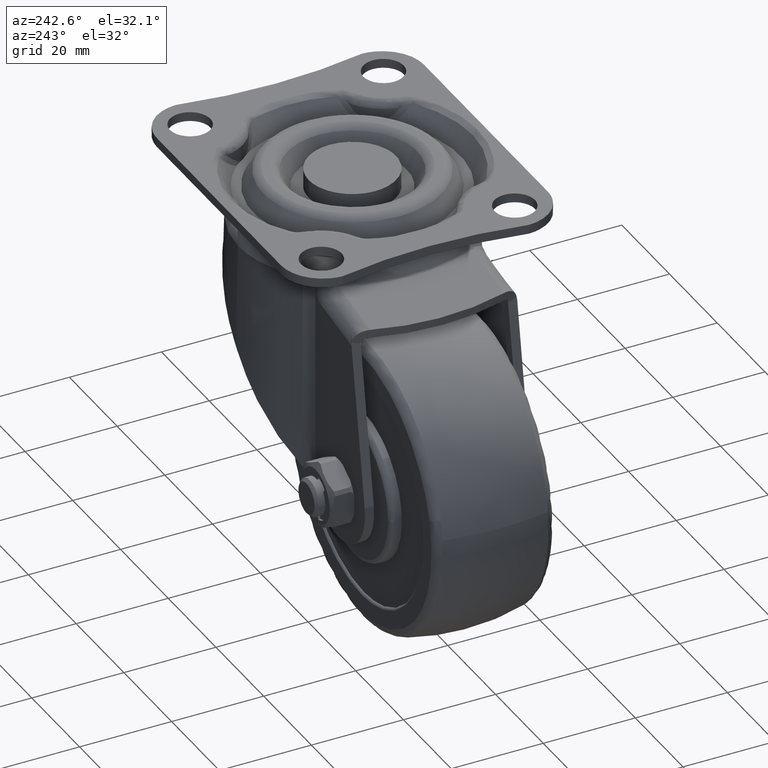
[diagram: clean part render]
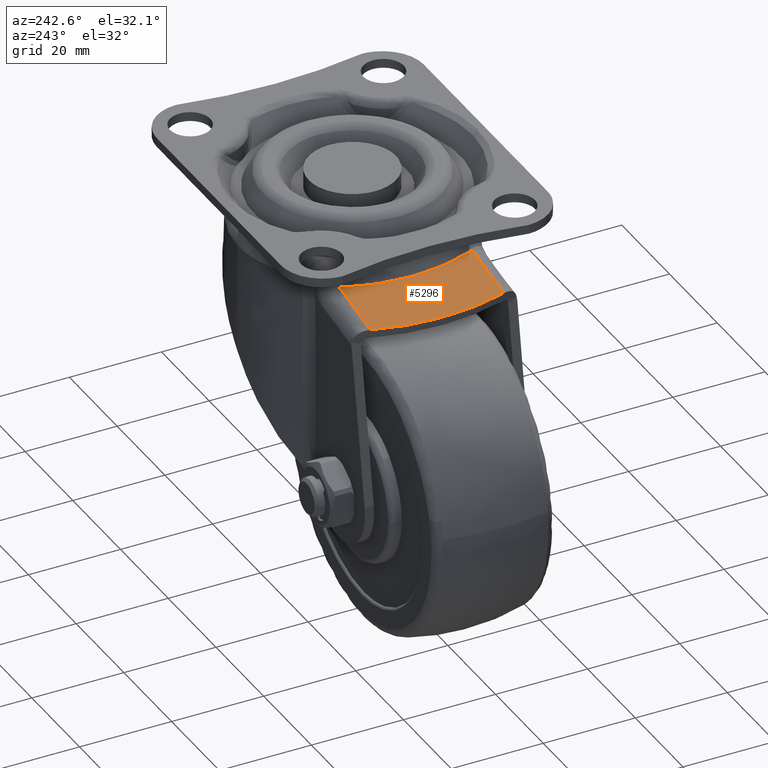
[diagram: same view with one face highlighted and labeled with its STEP entity id]
A machine part, auxiliary view. The second image highlights one B-rep face of the part: STEP entity #5296.
In plain terms, the highlighted face is a freeform B-spline surface patch.
Its self-contained STEP definition (entity closure, byte-faithful):
#3289=CARTESIAN_POINT('',(-22.292062245486200,14.499999078087519,-11.172663872593700));
#3290=VERTEX_POINT('',#3289);
#3355=CARTESIAN_POINT('',(-35.608757347840601,14.499999291777261,-13.520757330045740));
#3356=VERTEX_POINT('',#3355);
#3382=CARTESIAN_POINT('',(-22.292062245486200,14.499999078087519,-11.172663872593700));
#3383=CARTESIAN_POINT('',(-24.589946974007479,14.499999125384980,-11.577843115488990));
#3384=CARTESIAN_POINT('',(-26.887831705435151,14.499999165962830,-11.983022341901220));
#3385=CARTESIAN_POINT('',(-29.185716438736350,14.499999201974379,-12.388201557688239));
#3386=CARTESIAN_POINT('',(-31.326730073625800,14.499999235527509,-12.765720156859910));
#3387=CARTESIAN_POINT('',(-33.467743710160292,14.499999265087920,-13.143238746702060));
#3388=CARTESIAN_POINT('',(-35.608757347840651,14.499999291777280,-13.520757330045720));
#3389=B_SPLINE_CURVE_WITH_KNOTS('',3,(#3382,#3383,#3384,#3385,#3386,#3387,#3388),.UNSPECIFIED.,.F.,.U.,(4,3,4),(0.0,0.007000000000000,0.013522126731177),.UNSPECIFIED.);
#3390=EDGE_CURVE('',#3290,#3356,#3389,.T.);
#3601=CARTESIAN_POINT('',(-22.292062245486250,-14.499999078087519,-11.172663872593700));
#3602=VERTEX_POINT('',#3601);
#3694=CARTESIAN_POINT('',(-35.608757347840601,-14.499999291777261,-13.520757330045720));
#3695=VERTEX_POINT('',#3694);
#3696=CARTESIAN_POINT('',(-35.608757347840651,-14.499999291777280,-13.520757330045740));
#3697=CARTESIAN_POINT('',(-33.310872611544063,-14.499999263132400,-13.115578131246430));
#3698=CARTESIAN_POINT('',(-31.012987876563749,-14.499999231187459,-12.710398924982179));
#3699=CARTESIAN_POINT('',(-28.715103143528200,-14.499999194533601,-12.305219707688620));
#3700=CARTESIAN_POINT('',(-26.574089508891269,-14.499999160382011,-11.927701107114149));
#3701=CARTESIAN_POINT('',(-24.433075875932079,-14.499999122156099,-11.550182497024780));
#3702=CARTESIAN_POINT('',(-22.292062245486250,-14.499999078087519,-11.172663872593700));
#3703=B_SPLINE_CURVE_WITH_KNOTS('',3,(#3696,#3697,#3698,#3699,#3700,#3701,#3702),.UNSPECIFIED.,.F.,.U.,(4,3,4),(4.934061E-017,0.007000000000000,0.013522126731161),.UNSPECIFIED.);
#3704=EDGE_CURVE('',#3695,#3602,#3703,.T.);
#3894=CARTESIAN_POINT('',(-22.292062245486221,-14.499999078087511,-11.172663872593700));
#3895=CARTESIAN_POINT('',(-22.713654037118779,-13.338696067851590,-11.247002221498160));
#3896=CARTESIAN_POINT('',(-23.082084395855649,-12.160232084907070,-11.311966733878460));
#3897=CARTESIAN_POINT('',(-23.477604627746761,-10.666651097056700,-11.381707944650969));
#3898=CARTESIAN_POINT('',(-23.553449477489512,-10.366885773481970,-11.395081499895699));
#3899=CARTESIAN_POINT('',(-23.698273761653891,-9.766873654737958,-11.420618046907199));
#3900=CARTESIAN_POINT('',(-23.767307031377399,-9.466429735575137,-11.432790531334071));
#3901=CARTESIAN_POINT('',(-23.964380548068970,-8.563798695407739,-11.467540070637600));
#3902=CARTESIAN_POINT('',(-24.082400926083441,-7.960313124133126,-11.488350344182040));
#3903=CARTESIAN_POINT('',(-24.397015989338531,-6.144744690629926,-11.543825726178680));
#3904=CARTESIAN_POINT('',(-24.554257711172529,-4.927562174279132,-11.571551813397940));
#3905=CARTESIAN_POINT('',(-24.764787540425338,-2.479726047331289,-11.608674075562851));
#3906=CARTESIAN_POINT('',(-24.818076692175168,-1.249072572066579,-11.618070434654580));
#3907=CARTESIAN_POINT('',(-24.818737714460330,1.225959939485007,-11.618186991262091));
#3908=CARTESIAN_POINT('',(-24.766098551286682,2.457870676078306,-11.608905243228049));
#3909=CARTESIAN_POINT('',(-24.556313581544391,4.910165726171117,-11.571914320502060));
#3910=CARTESIAN_POINT('',(-24.399169355035362,6.130628631102218,-11.544205424416759));
#3911=CARTESIAN_POINT('',(-24.136420614466459,7.648992282920834,-11.497875516998750));
#3912=CARTESIAN_POINT('',(-24.080547335814479,7.952303436656977,-11.488023504707829));
#3913=CARTESIAN_POINT('',(-23.962097330245701,8.558196456346938,-11.467137475900071));
#3914=CARTESIAN_POINT('',(-23.899495678488819,8.860891167700109,-11.456099064441069));
#3915=CARTESIAN_POINT('',(-23.701707713929181,9.767067929059746,-11.421223548117361));
#3916=CARTESIAN_POINT('',(-23.556634375721220,10.368230485160540,-11.395643085931640));
#3917=CARTESIAN_POINT('',(-23.082032505502880,12.160397992521190,-11.311957584167040));
#3918=CARTESIAN_POINT('',(-22.713624356532499,13.338777825027311,-11.246996987985980));
#3919=CARTESIAN_POINT('',(-22.292062245486211,14.499999078087530,-11.172663872593700));
#3920=B_SPLINE_CURVE_WITH_KNOTS('',3,(#3894,#3895,#3896,#3897,#3898,#3899,#3900,#3901,#3902,#3903,#3904,#3905,#3906,#3907,#3908,#3909,#3910,#3911,#3912,#3913,#3914,#3915,#3916,#3917,#3918,#3919),.UNSPECIFIED.,.F.,.U.,(4,2,2,2,2,2,2,2,2,2,2,2,4),(0.0,0.125000000000000,0.156250000000000,0.187500000000000,0.250000000000000,0.375000000000000,0.500000000000000,0.625000000000000,0.750000000000000,0.781250000000000,0.812500000000000,0.875000000000000,1.0),.UNSPECIFIED.);
#3921=EDGE_CURVE('',#3602,#3290,#3920,.T.);
#5264=CARTESIAN_POINT('',(-35.608757347840651,-14.499999291777289,-13.520757330045740));
#5265=CARTESIAN_POINT('',(-39.458776048143321,-1.387779E-014,-14.199622685589116));
#5266=CARTESIAN_POINT('',(-35.608757347840651,14.499999291777270,-13.520757330045750));
#5274=(BOUNDED_CURVE()B_SPLINE_CURVE(2,(#5264,#5265,#5266),.UNSPECIFIED.,.F.,.U.)CURVE()GEOMETRIC_REPRESENTATION_ITEM()QUASI_UNIFORM_CURVE()RATIONAL_B_SPLINE_CURVE((1.0,0.965522655819717,1.0))REPRESENTATION_ITEM(''));
#5275=EDGE_CURVE('',#3695,#3356,#5274,.T.);
#5285=CARTESIAN_POINT('',(-38.259634535647727,-15.948548892586951,-13.988191126064979));
#5286=CARTESIAN_POINT('',(-21.532426563726929,-15.948548892586951,-11.038719221886151));
#5287=CARTESIAN_POINT('',(-38.259634535647727,15.948549929707710,-13.988191126064979));
#5288=CARTESIAN_POINT('',(-21.532426563726929,15.948549929707710,-11.038719221886151));
#5289=B_SPLINE_SURFACE_WITH_KNOTS('',1,1,((#5285,#5287),(#5286,#5288)),.UNSPECIFIED.,.F.,.F.,.U.,(2,2),(2,2),(0.0,16.985254518241138),(0.0,31.897098822294659),.UNSPECIFIED.);
#5290=ORIENTED_EDGE('',*,*,#3921,.T.);
#5291=ORIENTED_EDGE('',*,*,#3390,.T.);
#5292=ORIENTED_EDGE('',*,*,#5275,.F.);
#5293=ORIENTED_EDGE('',*,*,#3704,.T.);
#5294=EDGE_LOOP('',(#5290,#5291,#5292,#5293));
#5295=FACE_OUTER_BOUND('',#5294,.T.);
#5296=ADVANCED_FACE('',(#5295),#5289,.T.);